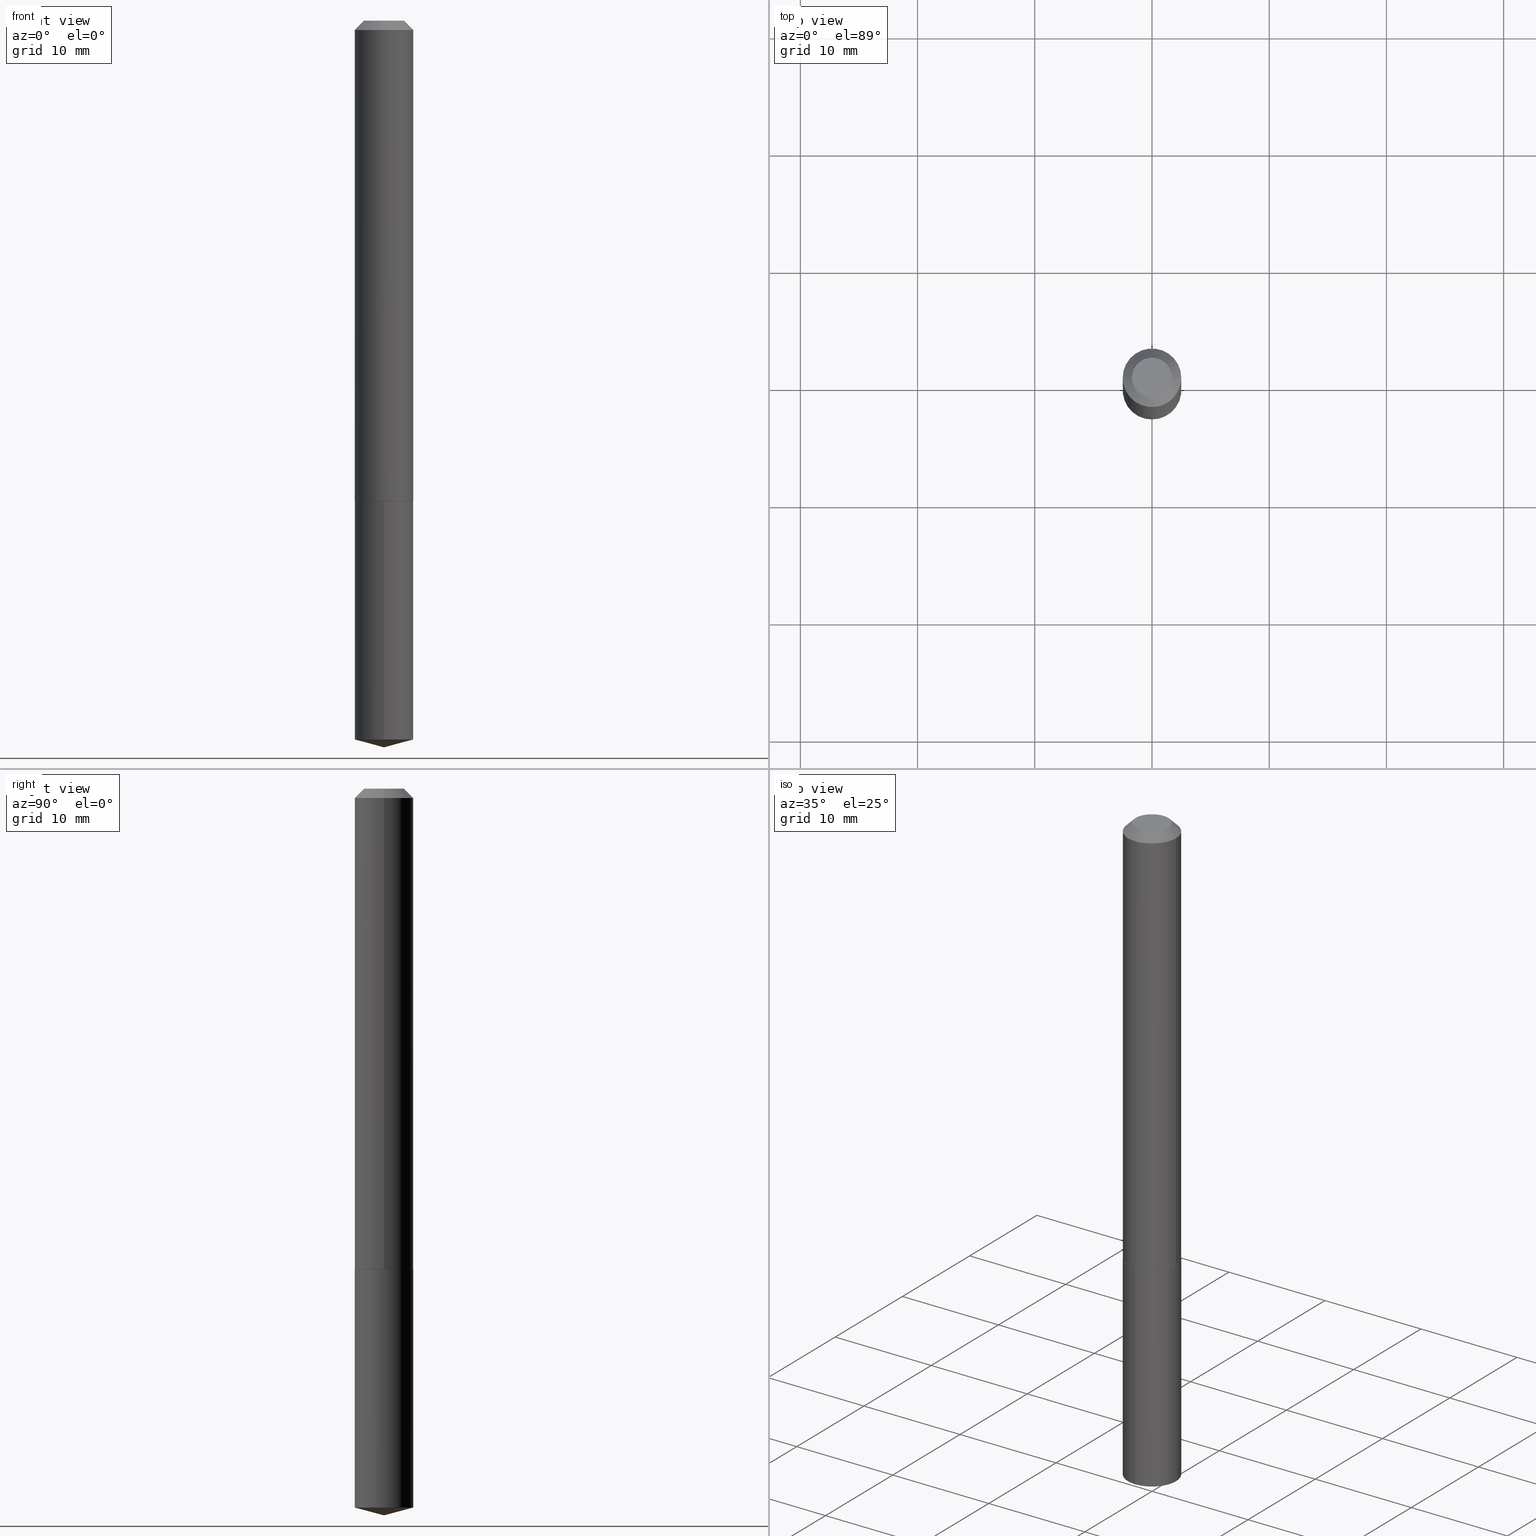
[diagram: canonical four-view strip — front | top / right | iso, engineering-drawing reading convention]
A machine part, canonical four-view strip (front | top / right | iso — engineering-drawing reading convention). The complete STEP part file that produces these views, byte-faithful:
ISO-10303-21;
HEADER;
FILE_DESCRIPTION (( 'STEP AP203' ),
    '1' );
FILE_NAME ('68985.STEP',
    '2024-04-23T14:04:39',
    ( '' ),
    ( '' ),
    'SwSTEP 2.0',
    'SolidWorks 2023',
    '' );
FILE_SCHEMA (( 'CONFIG_CONTROL_DESIGN' ));
ENDSEC;

DATA;
#1 = CYLINDRICAL_SURFACE ( 'NONE', #125, 0.09845000000000010687 ) ;
#2 = ADVANCED_FACE ( 'NONE', ( #326 ), #58, .F. ) ;
#3 = PERSON_AND_ORGANIZATION_ROLE ( 'creator' ) ;
#4 = AXIS2_PLACEMENT_3D ( 'NONE', #316, #218, #354 ) ;
#5 = AXIS2_PLACEMENT_3D ( 'NONE', #61, #327, #268 ) ;
#6 = DATE_AND_TIME ( #246, #98 ) ;
#7 = EDGE_CURVE ( 'NONE', #80, #118, #83, .T. ) ;
#8 = AXIS2_PLACEMENT_3D ( 'NONE', #148, #266, #385 ) ;
#9 = CC_DESIGN_APPROVAL ( #223, ( #379 ) ) ;
#10 = ORIENTED_EDGE ( 'NONE', *, *, #93, .F. ) ;
#11 = DIRECTION ( 'NONE',  ( -2.445468806185136877E-29, 3.491481338843145188E-15, 1.000000000000000000 ) ) ;
#12 = VERTEX_POINT ( 'NONE', #174 ) ;
#13 = EDGE_CURVE ( 'NONE', #376, #137, #175, .T. ) ;
#14 = LINE ( 'NONE', #284, #69 ) ;
#15 = ORIENTED_EDGE ( 'NONE', *, *, #13, .T. ) ;
#16 = SECURITY_CLASSIFICATION ( '', '', #205 ) ;
#17 = CARTESIAN_POINT ( 'NONE',  ( -6.874726756181734128E-16, -0.09845000000000563023, -1.614199999999999635 ) ) ;
#18 = ORIENTED_EDGE ( 'NONE', *, *, #153, .F. ) ;
#19 = DIRECTION ( 'NONE',  ( 1.000000000000000000, -6.982962677686271444E-15, 0.000000000000000000 ) ) ;
#20 = DIRECTION ( 'NONE',  ( 1.000000000000000000, -6.982962677686265922E-15, 4.876176775795935793E-29 ) ) ;
#21 = APPROVAL_STATUS ( 'not_yet_approved' ) ;
#22 = PLANE ( 'NONE',  #104 ) ;
#23 = FACE_OUTER_BOUND ( 'NONE', #225, .T. ) ;
#24 = EDGE_CURVE ( 'NONE', #107, #12, #199, .T. ) ;
#25 = CIRCLE ( 'NONE', #214, 0.09844999999999999585 ) ;
#26 = DIRECTION ( 'NONE',  ( -6.982962677686267499E-15, -1.000000000000000000, 3.510303681827589946E-15 ) ) ;
#27 = DIRECTION ( 'NONE',  ( -6.982962677686265922E-15, -1.000000000000000000, 2.774858297271979165E-15 ) ) ;
#28 = DIRECTION ( 'NONE',  ( -0.7071067811864871766, 7.493145998870136435E-15, 0.7071067811866078578 ) ) ;
#29 = CC_DESIGN_DATE_AND_TIME_ASSIGNMENT ( #6, #245, ( #379 ) ) ;
#30 = DIRECTION ( 'NONE',  ( 1.000000000000000000, -6.982962677686266711E-15, 0.000000000000000000 ) ) ;
#31 = DIRECTION ( 'NONE',  ( -2.445468806185136597E-29, 3.491481338843145583E-15, 1.000000000000000000 ) ) ;
#32 = LOCAL_TIME ( 10, 4, 39.00000000000000000, #54 ) ;
#33 = DIRECTION ( 'NONE',  ( -2.445468806185136597E-29, 3.491481338843145583E-15, 1.000000000000000000 ) ) ;
#34 = DESIGN_CONTEXT ( 'detailed design', #42, 'design' ) ;
#35 = EDGE_CURVE ( 'NONE', #191, #229, #25, .T. ) ;
#36 = DIRECTION ( 'NONE',  ( 1.000000000000000000, 0.000000000000000000, 0.000000000000000000 ) ) ;
#37 = AXIS2_PLACEMENT_3D ( 'NONE', #114, #389, #305 ) ;
#38 = APPROVAL_ROLE ( '' ) ;
#39 = DIRECTION ( 'NONE',  ( -6.982962677686265922E-15, -1.000000000000000000, 2.774858297271979165E-15 ) ) ;
#40 = EDGE_CURVE ( 'NONE', #73, #191, #56, .T. ) ;
#41 = PERSON_AND_ORGANIZATION ( #160, #176 ) ;
#42 = APPLICATION_CONTEXT ( 'configuration controlled 3d designs of mechanical parts and assemblies' ) ;
#43 = ORIENTED_EDGE ( 'NONE', *, *, #243, .F. ) ;
#44 = FACE_OUTER_BOUND ( 'NONE', #260, .T. ) ;
#45 = EDGE_LOOP ( 'NONE', ( #358, #203, #48 ) ) ;
#46 = ADVANCED_FACE ( 'NONE', ( #23 ), #265, .T. ) ;
#47 = DIRECTION ( 'NONE',  ( -2.445468806185136597E-29, 3.491481338843145583E-15, 1.000000000000000000 ) ) ;
#48 = ORIENTED_EDGE ( 'NONE', *, *, #164, .F. ) ;
#49 = DIRECTION ( 'NONE',  ( -6.982962677686265922E-15, -1.000000000000000000, 2.774858297271979165E-15 ) ) ;
#50 = ORIENTED_EDGE ( 'NONE', *, *, #24, .T. ) ;
#51 = CIRCLE ( 'NONE', #5, 0.06719999999999999585 ) ;
#52 = CARTESIAN_POINT ( 'NONE',  ( 0.09845000000000020401, -6.321676112109399581E-15, -1.613700000000000134 ) ) ;
#53 = ORIENTED_EDGE ( 'NONE', *, *, #368, .T. ) ;
#54 = COORDINATED_UNIVERSAL_TIME_OFFSET ( 5, 0, .BEHIND. ) ;
#55 = DIRECTION ( 'NONE',  ( -2.445457904688896865E-29, 3.491496950406235552E-15, 1.000000000000000000 ) ) ;
#56 = LINE ( 'NONE', #172, #353 ) ;
#57 = FACE_OUTER_BOUND ( 'NONE', #258, .T. ) ;
#58 = PLANE ( 'NONE',  #281 ) ;
#59 = AXIS2_PLACEMENT_3D ( 'NONE', #193, #261, #49 ) ;
#60 = APPROVAL_PERSON_ORGANIZATION ( #41, #122, #359 ) ;
#61 = CARTESIAN_POINT ( 'NONE',  ( -5.989671091818665474E-48, 8.551662891793964028E-34, 2.449293598294711584E-19 ) ) ;
#62 = ORIENTED_EDGE ( 'NONE', *, *, #308, .F. ) ;
#63 = EDGE_CURVE ( 'NONE', #351, #315, #94, .T. ) ;
#64 = DIRECTION ( 'NONE',  ( 6.863315791527699781E-15, 0.9659258262890701996, 0.2588190451025139671 ) ) ;
#65 = CIRCLE ( 'NONE', #288, 0.09795000000000038398 ) ;
#66 = LOCAL_TIME ( 10, 4, 39.00000000000000000, #253 ) ;
#67 = COORDINATED_UNIVERSAL_TIME_OFFSET ( 5, 0, .BEHIND. ) ;
#68 = APPROVAL_STATUS ( 'not_yet_approved' ) ;
#69 = VECTOR ( 'NONE', #11, 39.37007874015748143 ) ;
#70 = CC_DESIGN_APPROVAL ( #341, ( #234 ) ) ;
#71 = PRODUCT_RELATED_PRODUCT_CATEGORY ( 'detail', '', ( #221 ) ) ;
#72 = PERSON_AND_ORGANIZATION ( #160, #176 ) ;
#73 = VERTEX_POINT ( 'NONE', #75 ) ;
#74 = CARTESIAN_POINT ( 'NONE',  ( -6.874726756181734128E-16, -0.09845000000000563023, -1.614199999999999635 ) ) ;
#75 = CARTESIAN_POINT ( 'NONE',  ( 5.969118199555127833E-29, -8.522394906246581598E-15, -2.440900000000000070 ) ) ;
#76 = ORIENTED_EDGE ( 'NONE', *, *, #280, .T. ) ;
#77 = DIRECTION ( 'NONE',  ( -6.982962677686265922E-15, -1.000000000000000000, 2.774858297271979165E-15 ) ) ;
#78 = ORIENTED_EDGE ( 'NONE', *, *, #164, .T. ) ;
#79 = FACE_OUTER_BOUND ( 'NONE', #135, .T. ) ;
#80 = VERTEX_POINT ( 'NONE', #190 ) ;
#81 = AXIS2_PLACEMENT_3D ( 'NONE', #84, #121, #357 ) ;
#82 = CARTESIAN_POINT ( 'NONE',  ( -6.874726756181536913E-16, -0.09845000000000840579, -2.414520402005156274 ) ) ;
#83 = LINE ( 'NONE', #202, #124 ) ;
#84 = CARTESIAN_POINT ( 'NONE',  ( 3.947475746944047390E-29, -5.635949177160606158E-15, -1.614199999999999857 ) ) ;
#85 = DIRECTION ( 'NONE',  ( -6.982962677686265922E-15, -1.000000000000000000, 2.774858297271979165E-15 ) ) ;
#86 = DIRECTION ( 'NONE',  ( 1.000000000000000000, -6.982962677686266711E-15, 0.000000000000000000 ) ) ;
#87 = EDGE_CURVE ( 'NONE', #229, #376, #194, .T. ) ;
#88 = CARTESIAN_POINT ( 'NONE',  ( 5.904625600311352834E-29, -8.430265420109503020E-15, -2.414520402005156718 ) ) ;
#89 = DIMENSIONAL_EXPONENTS ( 1.000000000000000000, 0.000000000000000000, 0.000000000000000000, 0.000000000000000000, 0.000000000000000000, 0.000000000000000000, 0.000000000000000000 ) ;
#90 = AXIS2_PLACEMENT_3D ( 'NONE', #295, #342, #312 ) ;
#91 = DIRECTION ( 'NONE',  ( -2.445468806185136597E-29, 3.491481338843145583E-15, 1.000000000000000000 ) ) ;
#92 = CARTESIAN_POINT ( 'NONE',  ( -0.09845000000000020401, -4.934674113135364966E-15, -1.613700000000000134 ) ) ;
#93 = EDGE_CURVE ( 'NONE', #107, #80, #344, .T. ) ;
#94 = CIRCLE ( 'NONE', #311, 0.09845000000000020401 ) ;
#95 = LINE ( 'NONE', #182, #371 ) ;
#96 = CC_DESIGN_PERSON_AND_ORGANIZATION_ASSIGNMENT ( #276, #3, ( #379 ) ) ;
#97 = CIRCLE ( 'NONE', #59, 0.09844999999999999585 ) ;
#98 = LOCAL_TIME ( 10, 4, 39.00000000000000000, #67 ) ;
#99 = COORDINATED_UNIVERSAL_TIME_OFFSET ( 5, 0, .BEHIND. ) ;
#100 = EDGE_LOOP ( 'NONE', ( #239, #15 ) ) ;
#101 = DIRECTION ( 'NONE',  ( -1.000000000000000000, 6.982962677686265922E-15, -4.876176775795935793E-29 ) ) ;
#102 = ORIENTED_EDGE ( 'NONE', *, *, #368, .F. ) ;
#103 = DIRECTION ( 'NONE',  ( 1.000000000000000000, -6.982962677686266711E-15, 4.876163892769828153E-29 ) ) ;
#104 = AXIS2_PLACEMENT_3D ( 'NONE', #144, #373, #101 ) ;
#105 = ORIENTED_EDGE ( 'NONE', *, *, #7, .F. ) ;
#106 = CARTESIAN_POINT ( 'NONE',  ( -5.989671091818665474E-48, 8.551662891793964028E-34, 2.449293598294711584E-19 ) ) ;
#107 = VERTEX_POINT ( 'NONE', #319 ) ;
#108 = DIRECTION ( 'NONE',  ( -2.445468806185136597E-29, 3.491481338843145583E-15, 1.000000000000000000 ) ) ;
#109 = ORIENTED_EDGE ( 'NONE', *, *, #181, .T. ) ;
#110 = ADVANCED_FACE ( 'NONE', ( #289 ), #370, .T. ) ;
#111 = CARTESIAN_POINT ( 'NONE',  ( 7.642090019328602662E-31, -1.091087918388490267E-16, -0.03125000000000020817 ) ) ;
#112 = EDGE_LOOP ( 'NONE', ( #236, #169 ) ) ;
#113 = CONICAL_SURFACE ( 'NONE', #320, 146.9311341562571158, 1.308996938995750758 ) ;
#114 = CARTESIAN_POINT ( 'NONE',  ( 3.947475746944047390E-29, -5.635949177160606158E-15, -1.614199999999999857 ) ) ;
#115 = CARTESIAN_POINT ( 'NONE',  ( 3.947475746944047390E-29, -5.635949177160606158E-15, -1.614199999999999857 ) ) ;
#116 = PERSON_AND_ORGANIZATION_ROLE ( 'design_supplier' ) ;
#117 = CARTESIAN_POINT ( 'NONE',  ( 3.946253012540955150E-29, -5.634203436491184654E-15, -1.613700000000000134 ) ) ;
#118 = VERTEX_POINT ( 'NONE', #141 ) ;
#119 = PERSON_AND_ORGANIZATION ( #160, #176 ) ;
#120 = DIRECTION ( 'NONE',  ( 1.000000000000000000, -6.982962677686269866E-15, 0.000000000000000000 ) ) ;
#121 = DIRECTION ( 'NONE',  ( -2.445468806185136597E-29, 3.491481338843145583E-15, 1.000000000000000000 ) ) ;
#122 = APPROVAL ( #21, 'UNSPECIFIED' ) ;
#123 = PERSON_AND_ORGANIZATION_ROLE ( 'design_owner' ) ;
#124 = VECTOR ( 'NONE', #330, 39.37007874015748143 ) ;
#125 = AXIS2_PLACEMENT_3D ( 'NONE', #242, #238, #209 ) ;
#126 = EDGE_CURVE ( 'NONE', #191, #137, #257, .T. ) ;
#127 = DIRECTION ( 'NONE',  ( -2.445457904688896865E-29, 3.491496950406235552E-15, 1.000000000000000000 ) ) ;
#128 = APPLICATION_PROTOCOL_DEFINITION ( 'international standard', 'config_control_design', 1994, #338 ) ;
#129 = CIRCLE ( 'NONE', #363, 0.09845000000000000973 ) ;
#130 = EDGE_LOOP ( 'NONE', ( #283, #78, #145, #251 ) ) ;
#131 = MANIFOLD_SOLID_BREP ( 'Body-Move/Copy2[2]', #272 ) ;
#132 = CALENDAR_DATE ( 2024, 23, 4 ) ;
#133 = ORIENTED_EDGE ( 'NONE', *, *, #153, .T. ) ;
#134 = DIRECTION ( 'NONE',  ( -2.445468806185136597E-29, 3.491481338843145583E-15, 1.000000000000000000 ) ) ;
#135 = EDGE_LOOP ( 'NONE', ( #340, #343, #388, #380 ) ) ;
#136 = DIRECTION ( 'NONE',  ( -2.445468806185136597E-29, 3.491481338843145583E-15, 1.000000000000000000 ) ) ;
#137 = VERTEX_POINT ( 'NONE', #74 ) ;
#138 = CARTESIAN_POINT ( 'NONE',  ( 3.947475746944047390E-29, -5.635949177160606158E-15, -1.614199999999999857 ) ) ;
#139 = ADVANCED_FACE ( 'NONE', ( #378 ), #244, .T. ) ;
#140 = ORIENTED_EDGE ( 'NONE', *, *, #7, .T. ) ;
#141 = CARTESIAN_POINT ( 'NONE',  ( -0.09845000000000000973, -2.172126790809196006E-15, -0.03125000000000020817 ) ) ;
#142 = CARTESIAN_POINT ( 'NONE',  ( 3.947475746944047390E-29, -5.635949177160606158E-15, -1.614199999999999857 ) ) ;
#143 = CALENDAR_DATE ( 2024, 23, 4 ) ;
#144 = CARTESIAN_POINT ( 'NONE',  ( -2.994835545909332737E-48, 4.275831445896982014E-34, 1.224646799147355792E-19 ) ) ;
#145 = ORIENTED_EDGE ( 'NONE', *, *, #126, .T. ) ;
#146 = VECTOR ( 'NONE', #292, 39.37007874015748143 ) ;
#147 = CARTESIAN_POINT ( 'NONE',  ( -0.09795000000000038398, -4.937323340309474589E-15, -1.614199999999999857 ) ) ;
#148 = CARTESIAN_POINT ( 'NONE',  ( 7.642090019328602662E-31, -1.091087918388490267E-16, -0.03125000000000020817 ) ) ;
#149 = CARTESIAN_POINT ( 'NONE',  ( 3.946253012540955150E-29, -5.634203436491184654E-15, -1.613700000000000134 ) ) ;
#150 = CARTESIAN_POINT ( 'NONE',  ( 7.642090019328602662E-31, -1.091087918388490267E-16, -0.03125000000000020817 ) ) ;
#151 = EDGE_CURVE ( 'NONE', #351, #12, #14, .T. ) ;
#152 = APPROVAL_ROLE ( '' ) ;
#153 = EDGE_CURVE ( 'NONE', #304, #217, #65, .T. ) ;
#154 = CC_DESIGN_SECURITY_CLASSIFICATION ( #16, ( #234 ) ) ;
#155 = DATE_AND_TIME ( #367, #306 ) ;
#156 = APPROVAL_DATE_TIME ( #264, #122 ) ;
#157 = CLOSED_SHELL ( 'NONE', ( #186, #110, #332, #158, #241 ) ) ;
#158 = ADVANCED_FACE ( 'NONE', ( #347 ), #188, .T. ) ;
#159 = ORIENTED_EDGE ( 'NONE', *, *, #280, .F. ) ;
#160 = PERSON ( 'UNSPECIFIED', 'UNSPECIFIED', 'UNSPECIFIED', ('UNSPECIFIED'), ('UNSPECIFIED'), ('UNSPECIFIED') ) ;
#161 = CARTESIAN_POINT ( 'NONE',  ( 3.946253012540955150E-29, -5.634203436491184654E-15, -1.613700000000000134 ) ) ;
#162 = LINE ( 'NONE', #52, #277 ) ;
#163 = ORIENTED_EDGE ( 'NONE', *, *, #293, .T. ) ;
#164 = EDGE_CURVE ( 'NONE', #229, #191, #97, .T. ) ;
#165 = FACE_OUTER_BOUND ( 'NONE', #112, .T. ) ;
#166 = AXIS2_PLACEMENT_3D ( 'NONE', #161, #134, #254 ) ;
#167 = EDGE_LOOP ( 'NONE', ( #102, #76, #187, #269 ) ) ;
#168 = CARTESIAN_POINT ( 'NONE',  ( 3.947475746944047390E-29, -5.635949177160606158E-15, -1.614199999999999857 ) ) ;
#169 = ORIENTED_EDGE ( 'NONE', *, *, #93, .T. ) ;
#170 = CYLINDRICAL_SURFACE ( 'NONE', #90, 0.09845000000000010687 ) ;
#171 = CC_DESIGN_PERSON_AND_ORGANIZATION_ASSIGNMENT ( #119, #237, ( #16 ) ) ;
#172 = CARTESIAN_POINT ( 'NONE',  ( 5.969118199555128954E-29, -8.522394906246581598E-15, -2.440900000000000070 ) ) ;
#173 = CARTESIAN_POINT ( 'NONE',  ( -9.030873446659202960E-28, 1.289381401524517603E-13, 36.92917874015748225 ) ) ;
#174 = CARTESIAN_POINT ( 'NONE',  ( 0.09845000000000000973, -7.965814674570621538E-16, -0.03125000000000020817 ) ) ;
#175 = CIRCLE ( 'NONE', #299, 0.09844999999999999585 ) ;
#176 = ORGANIZATION ( 'UNSPECIFIED', 'UNSPECIFIED', '' ) ;
#177 = CARTESIAN_POINT ( 'NONE',  ( 7.642090019328602662E-31, -1.091087918388490267E-16, -0.03125000000000020817 ) ) ;
#178 = ORIENTED_EDGE ( 'NONE', *, *, #40, .F. ) ;
#179 = VECTOR ( 'NONE', #226, 39.37007874015748143 ) ;
#180 = UNCERTAINTY_MEASURE_WITH_UNIT (LENGTH_MEASURE( 1.000000000000000082E-05 ), #339, 'distance_accuracy_value', 'NONE');
#181 = EDGE_CURVE ( 'NONE', #217, #351, #162, .T. ) ;
#182 = CARTESIAN_POINT ( 'NONE',  ( -0.09845000000000010687, 6.995293233558193923E-16, -4.842691596355960348E-30 ) ) ;
#183 = AXIS2_PLACEMENT_3D ( 'NONE', #149, #31, #120 ) ;
#184 =( GEOMETRIC_REPRESENTATION_CONTEXT ( 3 ) GLOBAL_UNCERTAINTY_ASSIGNED_CONTEXT ( ( #180 ) ) GLOBAL_UNIT_ASSIGNED_CONTEXT ( ( #339, #213, #334 ) ) REPRESENTATION_CONTEXT ( 'NONE', 'WORKASPACE' ) );
#185 = CARTESIAN_POINT ( 'NONE',  ( 0.000000000000000000, 0.000000000000000000, 0.000000000000000000 ) ) ;
#186 = ADVANCED_FACE ( 'NONE', ( #79 ), #323, .T. ) ;
#187 = ORIENTED_EDGE ( 'NONE', *, *, #151, .T. ) ;
#188 = CYLINDRICAL_SURFACE ( 'NONE', #220, 0.09844999999999999585 ) ;
#189 = ORIENTED_EDGE ( 'NONE', *, *, #293, .F. ) ;
#190 = CARTESIAN_POINT ( 'NONE',  ( -0.06719999999999999585, 5.238094878599405854E-16, 2.449293598259989474E-19 ) ) ;
#191 = VERTEX_POINT ( 'NONE', #82 ) ;
#192 = ADVANCED_FACE ( 'NONE', ( #381 ), #170, .T. ) ;
#193 = CARTESIAN_POINT ( 'NONE',  ( 5.904625600311352834E-29, -8.430265420109503020E-15, -2.414520402005156718 ) ) ;
#194 = LINE ( 'NONE', #314, #146 ) ;
#195 = ORIENTED_EDGE ( 'NONE', *, *, #24, .F. ) ;
#196 = LOCAL_TIME ( 10, 4, 39.00000000000000000, #352 ) ;
#197 = APPROVAL_DATE_TIME ( #230, #341 ) ;
#198 = DIRECTION ( 'NONE',  ( -1.000000000000000000, 6.982962677686266711E-15, 0.000000000000000000 ) ) ;
#199 = LINE ( 'NONE', #262, #232 ) ;
#200 = CARTESIAN_POINT ( 'NONE',  ( 5.969153702558850424E-29, -8.522344505876300941E-15, -2.440900000000000070 ) ) ;
#201 = CC_DESIGN_PERSON_AND_ORGANIZATION_ASSIGNMENT ( #297, #116, ( #234 ) ) ;
#202 = CARTESIAN_POINT ( 'NONE',  ( -0.09845000000000000973, 5.783638837793639525E-16, -0.03125000000000020817 ) ) ;
#203 = ORIENTED_EDGE ( 'NONE', *, *, #40, .T. ) ;
#204 = CONICAL_SURFACE ( 'NONE', #166, 0.09845000000000020401, 0.7853981633973630139 ) ;
#205 = SECURITY_CLASSIFICATION_LEVEL ( 'unclassified' ) ;
#206 = CIRCLE ( 'NONE', #250, 0.09844999999999999585 ) ;
#207 = DIRECTION ( 'NONE',  ( 1.000000000000000000, -6.982962677686269866E-15, 0.000000000000000000 ) ) ;
#208 = ADVANCED_FACE ( 'NONE', ( #165 ), #22, .F. ) ;
#209 = DIRECTION ( 'NONE',  ( 1.000000000000000000, -6.982962677686267499E-15, 4.876176775795935793E-29 ) ) ;
#210 = CARTESIAN_POINT ( 'NONE',  ( 6.995293233558776694E-16, 0.09844999999999436147, -1.614200000000000301 ) ) ;
#211 = ADVANCED_FACE ( 'NONE', ( #44 ), #204, .T. ) ;
#212 = MECHANICAL_CONTEXT ( 'NONE', #338, 'mechanical' ) ;
#213 =( NAMED_UNIT ( * ) PLANE_ANGLE_UNIT ( ) SI_UNIT ( $, .RADIAN. ) );
#214 = AXIS2_PLACEMENT_3D ( 'NONE', #88, #324, #27 ) ;
#215 = CARTESIAN_POINT ( 'NONE',  ( 3.947475746944047390E-29, -5.635949177160606158E-15, -1.614199999999999857 ) ) ;
#216 = CC_DESIGN_DATE_AND_TIME_ASSIGNMENT ( #270, #294, ( #16 ) ) ;
#217 = VERTEX_POINT ( 'NONE', #375 ) ;
#218 = DIRECTION ( 'NONE',  ( -2.445457904688896865E-29, 3.491496950406235552E-15, 1.000000000000000000 ) ) ;
#219 = ORIENTED_EDGE ( 'NONE', *, *, #235, .T. ) ;
#220 = AXIS2_PLACEMENT_3D ( 'NONE', #138, #55, #77 ) ;
#221 = PRODUCT ( '68985', '68985', '', ( #212 ) ) ;
#222 = CARTESIAN_POINT ( 'NONE',  ( 3.947475746944047390E-29, -5.635949177160606158E-15, -1.614199999999999857 ) ) ;
#223 = APPROVAL ( #249, 'UNSPECIFIED' ) ;
#224 = APPROVAL_PERSON_ORGANIZATION ( #310, #223, #152 ) ;
#225 = EDGE_LOOP ( 'NONE', ( #10, #50, #163, #105 ) ) ;
#226 = DIRECTION ( 'NONE',  ( -2.445457904688896865E-29, 3.491496950406235552E-15, 1.000000000000000000 ) ) ;
#227 = ORIENTED_EDGE ( 'NONE', *, *, #151, .F. ) ;
#228 = DIRECTION ( 'NONE',  ( 2.445468806185136597E-29, -3.491481338843145583E-15, -1.000000000000000000 ) ) ;
#229 = VERTEX_POINT ( 'NONE', #286 ) ;
#230 = DATE_AND_TIME ( #132, #196 ) ;
#231 = DIRECTION ( 'NONE',  ( -6.982962677686265922E-15, -1.000000000000000000, 2.774858297271979165E-15 ) ) ;
#232 = VECTOR ( 'NONE', #301, 39.37007874015748143 ) ;
#233 = ORIENTED_EDGE ( 'NONE', *, *, #243, .T. ) ;
#234 = PRODUCT_DEFINITION_FORMATION_WITH_SPECIFIED_SOURCE ( 'ANY', '', #221, .NOT_KNOWN. ) ;
#235 = EDGE_CURVE ( 'NONE', #118, #12, #377, .T. ) ;
#236 = ORIENTED_EDGE ( 'NONE', *, *, #336, .T. ) ;
#237 = PERSON_AND_ORGANIZATION_ROLE ( 'classification_officer' ) ;
#238 = DIRECTION ( 'NONE',  ( -2.445468806185136597E-29, 3.491481338843145583E-15, 1.000000000000000000 ) ) ;
#239 = ORIENTED_EDGE ( 'NONE', *, *, #356, .T. ) ;
#240 = PERSON_AND_ORGANIZATION ( #160, #176 ) ;
#241 = ADVANCED_FACE ( 'NONE', ( #360 ), #303, .F. ) ;
#242 = CARTESIAN_POINT ( 'NONE',  ( 0.000000000000000000, 0.000000000000000000, 0.000000000000000000 ) ) ;
#243 = EDGE_CURVE ( 'NONE', #217, #304, #248, .T. ) ;
#244 = CONICAL_SURFACE ( 'NONE', #300, 0.09845000000000000973, 0.7853981633974452814 ) ;
#245 = DATE_TIME_ROLE ( 'creation_date' ) ;
#246 = CALENDAR_DATE ( 2024, 23, 4 ) ;
#247 = ADVANCED_BREP_SHAPE_REPRESENTATION ( '68985', ( #386, #131, #345 ), #184 ) ;
#248 = CIRCLE ( 'NONE', #81, 0.09795000000000038398 ) ;
#249 = APPROVAL_STATUS ( 'not_yet_approved' ) ;
#250 = AXIS2_PLACEMENT_3D ( 'NONE', #215, #127, #39 ) ;
#251 = ORIENTED_EDGE ( 'NONE', *, *, #13, .F. ) ;
#252 = CALENDAR_DATE ( 2024, 23, 4 ) ;
#253 = COORDINATED_UNIVERSAL_TIME_OFFSET ( 5, 0, .BEHIND. ) ;
#254 = DIRECTION ( 'NONE',  ( 1.000000000000000000, -6.982962677686269866E-15, 0.000000000000000000 ) ) ;
#255 = ORIENTED_EDGE ( 'NONE', *, *, #63, .F. ) ;
#256 = VECTOR ( 'NONE', #64, 39.37007874015747433 ) ;
#257 = LINE ( 'NONE', #17, #179 ) ;
#258 = EDGE_LOOP ( 'NONE', ( #287, #53, #189, #227 ) ) ;
#259 = DIRECTION ( 'NONE',  ( 0.7071067811864871766, -2.468850131081624789E-15, 0.7071067811866078578 ) ) ;
#260 = EDGE_LOOP ( 'NONE', ( #233, #374, #255, #291 ) ) ;
#261 = DIRECTION ( 'NONE',  ( -2.445457904688896865E-29, 3.491496950406235552E-15, 1.000000000000000000 ) ) ;
#262 = CARTESIAN_POINT ( 'NONE',  ( 0.09845000000000000973, -7.845248197194565048E-16, -0.03125000000000020817 ) ) ;
#263 = EDGE_CURVE ( 'NONE', #73, #229, #325, .T. ) ;
#264 = DATE_AND_TIME ( #143, #66 ) ;
#265 = CONICAL_SURFACE ( 'NONE', #8, 0.09845000000000000973, 0.7853981633974452814 ) ;
#266 = DIRECTION ( 'NONE',  ( 2.445468806185136597E-29, -3.491481338843145583E-15, -1.000000000000000000 ) ) ;
#267 = SHAPE_DEFINITION_REPRESENTATION ( #348, #247 ) ;
#268 = DIRECTION ( 'NONE',  ( 1.000000000000000000, -6.982962677686266711E-15, 4.876163892769828153E-29 ) ) ;
#269 = ORIENTED_EDGE ( 'NONE', *, *, #235, .F. ) ;
#270 = DATE_AND_TIME ( #252, #32 ) ;
#271 = FACE_OUTER_BOUND ( 'NONE', #45, .T. ) ;
#272 = CLOSED_SHELL ( 'NONE', ( #46, #318, #211, #2, #349, #192, #139, #208 ) ) ;
#273 = CARTESIAN_POINT ( 'NONE',  ( -0.09845000000000020401, -4.934674113135364966E-15, -1.613700000000000134 ) ) ;
#274 =( LENGTH_UNIT ( ) NAMED_UNIT ( * ) SI_UNIT ( $, .METRE. ) );
#275 = CC_DESIGN_PERSON_AND_ORGANIZATION_ASSIGNMENT ( #240, #322, ( #234 ) ) ;
#276 = PERSON_AND_ORGANIZATION ( #160, #176 ) ;
#277 = VECTOR ( 'NONE', #259, 39.37007874015748143 ) ;
#278 = APPROVAL_PERSON_ORGANIZATION ( #369, #341, #38 ) ;
#279 = APPLICATION_PROTOCOL_DEFINITION ( 'international standard', 'config_control_design', 1994, #42 ) ;
#280 = EDGE_CURVE ( 'NONE', #315, #351, #362, .T. ) ;
#281 = AXIS2_PLACEMENT_3D ( 'NONE', #142, #355, #20 ) ;
#282 = VECTOR ( 'NONE', #28, 39.37007874015748143 ) ;
#283 = ORIENTED_EDGE ( 'NONE', *, *, #87, .F. ) ;
#284 = CARTESIAN_POINT ( 'NONE',  ( 0.09845000000000010687, -6.874726756182137434E-16, 4.800596035771104119E-30 ) ) ;
#285 = EDGE_LOOP ( 'NONE', ( #195, #321, #140, #219 ) ) ;
#286 = CARTESIAN_POINT ( 'NONE',  ( 6.995293233558774722E-16, 0.09844999999999154427, -2.414520402005156718 ) ) ;
#287 = ORIENTED_EDGE ( 'NONE', *, *, #63, .T. ) ;
#288 = AXIS2_PLACEMENT_3D ( 'NONE', #222, #136, #19 ) ;
#289 = FACE_OUTER_BOUND ( 'NONE', #317, .T. ) ;
#290 = AXIS2_PLACEMENT_3D ( 'NONE', #117, #91, #207 ) ;
#291 = ORIENTED_EDGE ( 'NONE', *, *, #181, .F. ) ;
#292 = DIRECTION ( 'NONE',  ( -2.445457904688896865E-29, 3.491496950406235552E-15, 1.000000000000000000 ) ) ;
#293 = EDGE_CURVE ( 'NONE', #12, #118, #129, .T. ) ;
#294 = DATE_TIME_ROLE ( 'classification_date' ) ;
#295 = CARTESIAN_POINT ( 'NONE',  ( 0.000000000000000000, 0.000000000000000000, 0.000000000000000000 ) ) ;
#296 = DIRECTION ( 'NONE',  ( -6.745023994389843077E-15, -0.9659258262890682012, 0.2588190451025206285 ) ) ;
#297 = PERSON_AND_ORGANIZATION ( #160, #176 ) ;
#298 = DIRECTION ( 'NONE',  ( -2.445457904688896865E-29, 3.491496950406235552E-15, 1.000000000000000000 ) ) ;
#299 = AXIS2_PLACEMENT_3D ( 'NONE', #115, #361, #85 ) ;
#300 = AXIS2_PLACEMENT_3D ( 'NONE', #111, #228, #198 ) ;
#301 = DIRECTION ( 'NONE',  ( 0.7071067811865453523, -7.319954787623248157E-15, -0.7071067811865496822 ) ) ;
#302 = CC_DESIGN_PERSON_AND_ORGANIZATION_ASSIGNMENT ( #72, #123, ( #221 ) ) ;
#303 = PLANE ( 'NONE',  #37 ) ;
#304 = VERTEX_POINT ( 'NONE', #147 ) ;
#305 = DIRECTION ( 'NONE',  ( 6.982962677686265922E-15, 1.000000000000000000, -3.491496950406235552E-15 ) ) ;
#306 = LOCAL_TIME ( 10, 4, 39.00000000000000000, #99 ) ;
#307 = APPROVAL_DATE_TIME ( #155, #223 ) ;
#308 = EDGE_CURVE ( 'NONE', #304, #315, #331, .T. ) ;
#309 = LENGTH_MEASURE_WITH_UNIT ( LENGTH_MEASURE( 0.02539999999999999897 ), #274 );
#310 = PERSON_AND_ORGANIZATION ( #160, #176 ) ;
#311 = AXIS2_PLACEMENT_3D ( 'NONE', #350, #108, #346 ) ;
#312 = DIRECTION ( 'NONE',  ( 1.000000000000000000, -6.982962677686267499E-15, 4.876176775795935793E-29 ) ) ;
#313 = ORIENTED_EDGE ( 'NONE', *, *, #35, .F. ) ;
#314 = CARTESIAN_POINT ( 'NONE',  ( 6.995293233558578493E-16, 0.09844999999999436147, -1.614200000000000301 ) ) ;
#315 = VERTEX_POINT ( 'NONE', #92 ) ;
#316 = CARTESIAN_POINT ( 'NONE',  ( -9.030873446659202960E-28, 1.289381401524517603E-13, 36.92917874015748225 ) ) ;
#317 = EDGE_LOOP ( 'NONE', ( #178, #372, #313 ) ) ;
#318 = ADVANCED_FACE ( 'NONE', ( #57 ), #1, .T. ) ;
#319 = CARTESIAN_POINT ( 'NONE',  ( 0.06719999999999999585, -6.227751425848516752E-16, 2.449293598332888811E-19 ) ) ;
#320 = AXIS2_PLACEMENT_3D ( 'NONE', #173, #298, #26 ) ;
#321 = ORIENTED_EDGE ( 'NONE', *, *, #336, .F. ) ;
#322 = PERSON_AND_ORGANIZATION_ROLE ( 'creator' ) ;
#323 = CYLINDRICAL_SURFACE ( 'NONE', #328, 0.09844999999999999585 ) ;
#324 = DIRECTION ( 'NONE',  ( -2.445457904688896865E-29, 3.491496950406235552E-15, 1.000000000000000000 ) ) ;
#325 = LINE ( 'NONE', #200, #256 ) ;
#326 = FACE_OUTER_BOUND ( 'NONE', #384, .T. ) ;
#327 = DIRECTION ( 'NONE',  ( -2.445468806185136597E-29, 3.491481338843145583E-15, 1.000000000000000000 ) ) ;
#328 = AXIS2_PLACEMENT_3D ( 'NONE', #168, #383, #231 ) ;
#329 = CC_DESIGN_APPROVAL ( #122, ( #16 ) ) ;
#330 = DIRECTION ( 'NONE',  ( -0.7071067811865453523, 2.468850131082234184E-15, -0.7071067811865496822 ) ) ;
#331 = LINE ( 'NONE', #273, #282 ) ;
#332 = ADVANCED_FACE ( 'NONE', ( #271 ), #113, .T. ) ;
#333 = CONICAL_SURFACE ( 'NONE', #290, 0.09845000000000020401, 0.7853981633973630139 ) ;
#334 =( NAMED_UNIT ( * ) SI_UNIT ( $, .STERADIAN. ) SOLID_ANGLE_UNIT ( ) );
#335 = CARTESIAN_POINT ( 'NONE',  ( 0.09845000000000020401, -6.321676112109399581E-15, -1.613700000000000134 ) ) ;
#336 = EDGE_CURVE ( 'NONE', #80, #107, #51, .T. ) ;
#337 = DIRECTION ( 'NONE',  ( 0.000000000000000000, 0.000000000000000000, 1.000000000000000000 ) ) ;
#338 = APPLICATION_CONTEXT ( 'configuration controlled 3d designs of mechanical parts and assemblies' ) ;
#339 =( CONVERSION_BASED_UNIT ( 'INCH', #309 ) LENGTH_UNIT ( ) NAMED_UNIT ( #89 ) );
#340 = ORIENTED_EDGE ( 'NONE', *, *, #35, .T. ) ;
#341 = APPROVAL ( #68, 'UNSPECIFIED' ) ;
#342 = DIRECTION ( 'NONE',  ( -2.445468806185136597E-29, 3.491481338843145583E-15, 1.000000000000000000 ) ) ;
#343 = ORIENTED_EDGE ( 'NONE', *, *, #87, .T. ) ;
#344 = CIRCLE ( 'NONE', #366, 0.06719999999999999585 ) ;
#345 = AXIS2_PLACEMENT_3D ( 'NONE', #185, #337, #36 ) ;
#346 = DIRECTION ( 'NONE',  ( 1.000000000000000000, -6.982962677686269866E-15, 0.000000000000000000 ) ) ;
#347 = FACE_OUTER_BOUND ( 'NONE', #130, .T. ) ;
#348 = PRODUCT_DEFINITION_SHAPE ( 'NONE', 'NONE',  #379 ) ;
#349 = ADVANCED_FACE ( 'NONE', ( #387 ), #333, .T. ) ;
#350 = CARTESIAN_POINT ( 'NONE',  ( 3.946253012540955150E-29, -5.634203436491184654E-15, -1.613700000000000134 ) ) ;
#351 = VERTEX_POINT ( 'NONE', #335 ) ;
#352 = COORDINATED_UNIVERSAL_TIME_OFFSET ( 5, 0, .BEHIND. ) ;
#353 = VECTOR ( 'NONE', #296, 39.37007874015748854 ) ;
#354 = DIRECTION ( 'NONE',  ( -6.982962677686267499E-15, -1.000000000000000000, 3.510303681827589946E-15 ) ) ;
#355 = DIRECTION ( 'NONE',  ( -2.438088387897960049E-29, 3.491481338843145188E-15, 1.000000000000000000 ) ) ;
#356 = EDGE_CURVE ( 'NONE', #137, #376, #206, .T. ) ;
#357 = DIRECTION ( 'NONE',  ( 1.000000000000000000, -6.982962677686271444E-15, 0.000000000000000000 ) ) ;
#358 = ORIENTED_EDGE ( 'NONE', *, *, #263, .F. ) ;
#359 = APPROVAL_ROLE ( '' ) ;
#360 = FACE_OUTER_BOUND ( 'NONE', #100, .T. ) ;
#361 = DIRECTION ( 'NONE',  ( -2.445457904688896865E-29, 3.491496950406235552E-15, 1.000000000000000000 ) ) ;
#362 = CIRCLE ( 'NONE', #183, 0.09845000000000020401 ) ;
#363 = AXIS2_PLACEMENT_3D ( 'NONE', #177, #364, #86 ) ;
#364 = DIRECTION ( 'NONE',  ( -2.445468806185136597E-29, 3.491481338843145583E-15, 1.000000000000000000 ) ) ;
#365 = DIRECTION ( 'NONE',  ( -2.445468806185136877E-29, 3.491481338843145188E-15, 1.000000000000000000 ) ) ;
#366 = AXIS2_PLACEMENT_3D ( 'NONE', #106, #47, #103 ) ;
#367 = CALENDAR_DATE ( 2024, 23, 4 ) ;
#368 = EDGE_CURVE ( 'NONE', #315, #118, #95, .T. ) ;
#369 = PERSON_AND_ORGANIZATION ( #160, #176 ) ;
#370 = CONICAL_SURFACE ( 'NONE', #4, 146.9311341562571158, 1.308996938995750758 ) ;
#371 = VECTOR ( 'NONE', #365, 39.37007874015748143 ) ;
#372 = ORIENTED_EDGE ( 'NONE', *, *, #263, .T. ) ;
#373 = DIRECTION ( 'NONE',  ( 2.438088387897960049E-29, -3.491481338843145188E-15, -1.000000000000000000 ) ) ;
#374 = ORIENTED_EDGE ( 'NONE', *, *, #308, .T. ) ;
#375 = CARTESIAN_POINT ( 'NONE',  ( 0.09795000000000038398, -6.319930371439978866E-15, -1.614199999999999857 ) ) ;
#376 = VERTEX_POINT ( 'NONE', #210 ) ;
#377 = CIRCLE ( 'NONE', #390, 0.09845000000000000973 ) ;
#378 = FACE_OUTER_BOUND ( 'NONE', #285, .T. ) ;
#379 = PRODUCT_DEFINITION ( 'UNKNOWN', '', #234, #34 ) ;
#380 = ORIENTED_EDGE ( 'NONE', *, *, #126, .F. ) ;
#381 = FACE_OUTER_BOUND ( 'NONE', #167, .T. ) ;
#382 = EDGE_LOOP ( 'NONE', ( #62, #133, #109, #159 ) ) ;
#383 = DIRECTION ( 'NONE',  ( -2.445457904688896865E-29, 3.491496950406235552E-15, 1.000000000000000000 ) ) ;
#384 = EDGE_LOOP ( 'NONE', ( #43, #18 ) ) ;
#385 = DIRECTION ( 'NONE',  ( -1.000000000000000000, 6.982962677686266711E-15, 0.000000000000000000 ) ) ;
#386 = MANIFOLD_SOLID_BREP ( 'Body-Move/Copy2[1]', #157 ) ;
#387 = FACE_OUTER_BOUND ( 'NONE', #382, .T. ) ;
#388 = ORIENTED_EDGE ( 'NONE', *, *, #356, .F. ) ;
#389 = DIRECTION ( 'NONE',  ( 2.445457904688896585E-29, -3.491496950406235552E-15, -1.000000000000000000 ) ) ;
#390 = AXIS2_PLACEMENT_3D ( 'NONE', #150, #33, #30 ) ;
ENDSEC;
END-ISO-10303-21;
